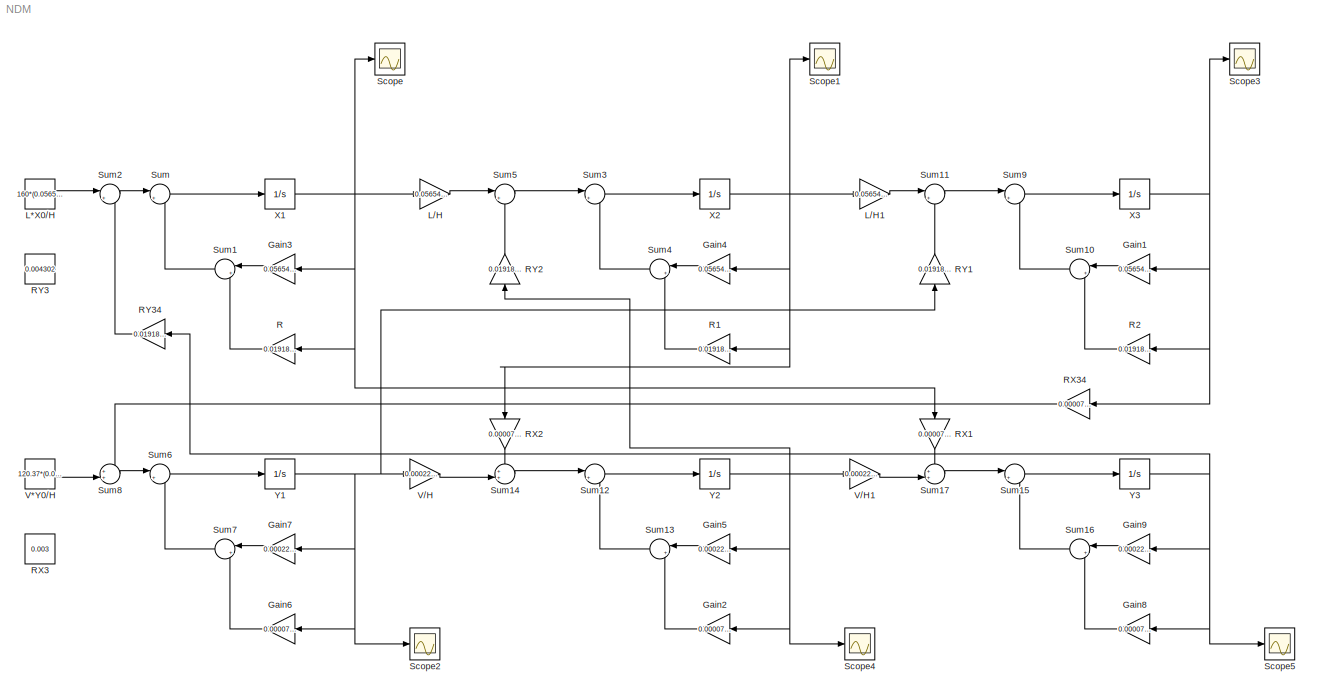
MODEL NDM
KIND model
BLOCK [Gain] Gain1
  Gain = 0.05654433/0.5
  OutDataTypeStr = Inherit: Inherit via internal rule
  ParamDataTypeStr = Inherit: Inherit via internal rule
  SID = 36
  SaturateOnIntegerOverflow = off
BLOCK [Gain] Gain2
  Gain = 0.0000777
  OutDataTypeStr = Inherit: Inherit via internal rule
  ParamDataTypeStr = Inherit: Inherit via internal rule
  SID = 47
  SaturateOnIntegerOverflow = off
BLOCK [Gain] Gain3
  Gain = 0.05654433/0.5
  OutDataTypeStr = Inherit: Inherit via internal rule
  ParamDataTypeStr = Inherit: Inherit via internal rule
  SID = 13
  SaturateOnIntegerOverflow = off
BLOCK [Gain] Gain4
  Gain = 0.05654433/0.5
  OutDataTypeStr = Inherit: Inherit via internal rule
  ParamDataTypeStr = Inherit: Inherit via internal rule
  SID = 20
  SaturateOnIntegerOverflow = off
BLOCK [Gain] Gain5
  Gain = 0.0002291314/0.5
  OutDataTypeStr = Inherit: Inherit via internal rule
  ParamDataTypeStr = Inherit: Inherit via internal rule
  SID = 48
  SaturateOnIntegerOverflow = off
BLOCK [Gain] Gain6
  Gain = 0.0000777
  OutDataTypeStr = Inherit: Inherit via internal rule
  ParamDataTypeStr = Inherit: Inherit via internal rule
  SID = 29
  SaturateOnIntegerOverflow = off
BLOCK [Gain] Gain7
  Gain = 0.0002291314/0.5
  OutDataTypeStr = Inherit: Inherit via internal rule
  ParamDataTypeStr = Inherit: Inherit via internal rule
  SID = 30
  SaturateOnIntegerOverflow = off
BLOCK [Gain] Gain8
  Gain = 0.0000777
  OutDataTypeStr = Inherit: Inherit via internal rule
  ParamDataTypeStr = Inherit: Inherit via internal rule
  SID = 56
  SaturateOnIntegerOverflow = off
BLOCK [Gain] Gain9
  Gain = 0.0002291314/0.5
  OutDataTypeStr = Inherit: Inherit via internal rule
  ParamDataTypeStr = Inherit: Inherit via internal rule
  SID = 57
  SaturateOnIntegerOverflow = off
BLOCK [Constant] L*X0//H
  SID = 5
  Value = 160*(0.05654433/0.5)
BLOCK [Gain] L//H
  Gain = 0.05654433/0.5
  OutDataTypeStr = Inherit: Inherit via internal rule
  ParamDataTypeStr = Inherit: Inherit via internal rule
  SID = 26
  SaturateOnIntegerOverflow = off
BLOCK [Gain] L//H1
  Gain = 0.05654433/0.5
  OutDataTypeStr = Inherit: Inherit via internal rule
  ParamDataTypeStr = Inherit: Inherit via internal rule
  SID = 42
  SaturateOnIntegerOverflow = off
BLOCK [Gain] R
  Gain = 0.0191806
  OutDataTypeStr = Inherit: Inherit via internal rule
  ParamDataTypeStr = Inherit: Inherit via internal rule
  SID = 12
  SaturateOnIntegerOverflow = off
BLOCK [Gain] R1
  Gain = 0.0191806
  OutDataTypeStr = Inherit: Inherit via internal rule
  ParamDataTypeStr = Inherit: Inherit via internal rule
  SID = 19
  SaturateOnIntegerOverflow = off
BLOCK [Gain] R2
  Gain = 0.0191806
  OutDataTypeStr = Inherit: Inherit via internal rule
  ParamDataTypeStr = Inherit: Inherit via internal rule
  SID = 37
  SaturateOnIntegerOverflow = off
BLOCK [Gain] RX1
  Gain = 0.0000777
  OutDataTypeStr = Inherit: Inherit via internal rule
  ParamDataTypeStr = Inherit: Inherit via internal rule
  SID = 68
  SaturateOnIntegerOverflow = off
BLOCK [Gain] RX2
  Gain = 0.0000777
  OutDataTypeStr = Inherit: Inherit via internal rule
  ParamDataTypeStr = Inherit: Inherit via internal rule
  SID = 67
  SaturateOnIntegerOverflow = off
BLOCK [Constant] RX3
  SID = 28
  Value = 0.003
BLOCK [Gain] RX34
  Gain = 0.0000777
  OutDataTypeStr = Inherit: Inherit via internal rule
  ParamDataTypeStr = Inherit: Inherit via internal rule
  SID = 70
  SaturateOnIntegerOverflow = off
BLOCK [Gain] RY1
  Gain = 0.0191806
  OutDataTypeStr = Inherit: Inherit via internal rule
  ParamDataTypeStr = Inherit: Inherit via internal rule
  SID = 66
  SaturateOnIntegerOverflow = off
BLOCK [Gain] RY2
  Gain = 0.0191806
  OutDataTypeStr = Inherit: Inherit via internal rule
  ParamDataTypeStr = Inherit: Inherit via internal rule
  SID = 65
  SaturateOnIntegerOverflow = off
BLOCK [Constant] RY3
  SID = 7
  Value = 0.004302
BLOCK [Gain] RY34
  Gain = 0.0191806
  OutDataTypeStr = Inherit: Inherit via internal rule
  ParamDataTypeStr = Inherit: Inherit via internal rule
  SID = 69
  SaturateOnIntegerOverflow = off
BLOCK [Scope] Scope
  DataFormat = StructureWithTime
  Floating = off
  LimitDataPoints = off
  NumInputPorts = 1
  Ports = [1]
  SID = 16
  SampleTime = 0
  YMax = 168
  YMin = 152
  ZoomMode = xonly
BLOCK [Scope] Scope1
  DataFormat = StructureWithTime
  Floating = off
  LimitDataPoints = off
  NumInputPorts = 1
  Ports = [1]
  SID = 22
  SampleTime = 0
  SaveName = ScopeData1
  YMax = 168
  YMin = 152
  ZoomMode = xonly
BLOCK [Scope] Scope2
  DataFormat = StructureWithTime
  Floating = off
  LimitDataPoints = off
  NumInputPorts = 1
  Ports = [1]
  SID = 35
  SampleTime = 0
  SaveName = ScopeData2
  YMax = -0.0003
  YMin = -0.00145
  ZoomMode = xonly
BLOCK [Scope] Scope3
  DataFormat = StructureWithTime
  Floating = off
  LimitDataPoints = off
  NumInputPorts = 1
  Ports = [1]
  SID = 38
  SampleTime = 0
  SaveName = ScopeData3
  ZoomMode = xonly
BLOCK [Scope] Scope4
  DataFormat = StructureWithTime
  Floating = off
  LimitDataPoints = off
  NumInputPorts = 1
  Ports = [1]
  SID = 49
  SampleTime = 0
  SaveName = ScopeData4
  YMax = -0.0181
  YMin = -0.0196
  ZoomMode = xonly
BLOCK [Scope] Scope5
  DataFormat = StructureWithTime
  Floating = off
  LimitDataPoints = off
  NumInputPorts = 1
  Ports = [1]
  SID = 58
  SampleTime = 0
  SaveName = ScopeData5
BLOCK [Sum] Sum
  IconShape = round
  InputSameDT = off
  Inputs = |+-
  OutDataTypeStr = Inherit: Inherit via internal rule
  Ports = [2, 1]
  SID = 4
  SaturateOnIntegerOverflow = off
BLOCK [Sum] Sum1
  IconShape = round
  InputSameDT = off
  Inputs = |++
  OutDataTypeStr = Inherit: Inherit via internal rule
  Ports = [2, 1]
  SID = 8
  SaturateOnIntegerOverflow = off
BLOCK [Sum] Sum10
  IconShape = round
  InputSameDT = off
  Inputs = |++
  OutDataTypeStr = Inherit: Inherit via internal rule
  Ports = [2, 1]
  SID = 40
  SaturateOnIntegerOverflow = off
BLOCK [Sum] Sum11
  IconShape = round
  InputSameDT = off
  Inputs = |++
  OutDataTypeStr = Inherit: Inherit via internal rule
  Ports = [2, 1]
  SID = 44
  SaturateOnIntegerOverflow = off
BLOCK [Sum] Sum12
  IconShape = round
  InputSameDT = off
  Inputs = |+-
  OutDataTypeStr = Inherit: Inherit via internal rule
  Ports = [2, 1]
  SID = 50
  SaturateOnIntegerOverflow = off
BLOCK [Sum] Sum13
  IconShape = round
  InputSameDT = off
  Inputs = |++
  OutDataTypeStr = Inherit: Inherit via internal rule
  Ports = [2, 1]
  SID = 51
  SaturateOnIntegerOverflow = off
BLOCK [Sum] Sum14
  IconShape = round
  InputSameDT = off
  Inputs = ++|
  OutDataTypeStr = Inherit: Inherit via internal rule
  Ports = [2, 1]
  SID = 52
  SaturateOnIntegerOverflow = off
BLOCK [Sum] Sum15
  IconShape = round
  InputSameDT = off
  Inputs = |+-
  OutDataTypeStr = Inherit: Inherit via internal rule
  Ports = [2, 1]
  SID = 59
  SaturateOnIntegerOverflow = off
BLOCK [Sum] Sum16
  IconShape = round
  InputSameDT = off
  Inputs = |++
  OutDataTypeStr = Inherit: Inherit via internal rule
  Ports = [2, 1]
  SID = 60
  SaturateOnIntegerOverflow = off
BLOCK [Sum] Sum17
  IconShape = round
  InputSameDT = off
  Inputs = ++|
  OutDataTypeStr = Inherit: Inherit via internal rule
  Ports = [2, 1]
  SID = 61
  SaturateOnIntegerOverflow = off
BLOCK [Sum] Sum2
  IconShape = round
  InputSameDT = off
  Inputs = |++
  OutDataTypeStr = Inherit: Inherit via internal rule
  Ports = [2, 1]
  SID = 15
  SaturateOnIntegerOverflow = off
BLOCK [Sum] Sum3
  IconShape = round
  InputSameDT = off
  Inputs = |+-
  OutDataTypeStr = Inherit: Inherit via internal rule
  Ports = [2, 1]
  SID = 23
  SaturateOnIntegerOverflow = off
BLOCK [Sum] Sum4
  IconShape = round
  InputSameDT = off
  Inputs = |++
  OutDataTypeStr = Inherit: Inherit via internal rule
  Ports = [2, 1]
  SID = 24
  SaturateOnIntegerOverflow = off
BLOCK [Sum] Sum5
  IconShape = round
  InputSameDT = off
  Inputs = |++
  OutDataTypeStr = Inherit: Inherit via internal rule
  Ports = [2, 1]
  SID = 25
  SaturateOnIntegerOverflow = off
BLOCK [Sum] Sum6
  IconShape = round
  InputSameDT = off
  Inputs = |+-
  OutDataTypeStr = Inherit: Inherit via internal rule
  Ports = [2, 1]
  SID = 32
  SaturateOnIntegerOverflow = off
BLOCK [Sum] Sum7
  IconShape = round
  InputSameDT = off
  Inputs = |++
  OutDataTypeStr = Inherit: Inherit via internal rule
  Ports = [2, 1]
  SID = 33
  SaturateOnIntegerOverflow = off
BLOCK [Sum] Sum8
  IconShape = round
  InputSameDT = off
  Inputs = ++|
  OutDataTypeStr = Inherit: Inherit via internal rule
  Ports = [2, 1]
  SID = 34
  SaturateOnIntegerOverflow = off
BLOCK [Sum] Sum9
  IconShape = round
  InputSameDT = off
  Inputs = |+-
  OutDataTypeStr = Inherit: Inherit via internal rule
  Ports = [2, 1]
  SID = 39
  SaturateOnIntegerOverflow = off
BLOCK [Constant] V*Y0//H
  SID = 27
  Value = 120.37*(0.0002291314/0.5)
BLOCK [Gain] V//H
  Gain = 0.0002291314/0.5
  OutDataTypeStr = Inherit: Inherit via internal rule
  ParamDataTypeStr = Inherit: Inherit via internal rule
  SID = 63
  SaturateOnIntegerOverflow = off
BLOCK [Gain] V//H1
  Gain = 0.0002291314/0.5
  OutDataTypeStr = Inherit: Inherit via internal rule
  ParamDataTypeStr = Inherit: Inherit via internal rule
  SID = 64
  SaturateOnIntegerOverflow = off
BLOCK [Integrator] X1
  Ports = [1, 1]
  SID = 6
BLOCK [Integrator] X2
  Ports = [1, 1]
  SID = 21
BLOCK [Integrator] X3
  Ports = [1, 1]
  SID = 41
BLOCK [Integrator] Y1
  Ports = [1, 1]
  SID = 31
BLOCK [Integrator] Y2
  Ports = [1, 1]
  SID = 53
BLOCK [Integrator] Y3
  Ports = [1, 1]
  SID = 62
LINE Gain1:1 -> Sum10:1
LINE Gain2:1 -> Sum13:2
LINE Gain3:1 -> Sum1:1
LINE Gain4:1 -> Sum4:1
LINE Gain5:1 -> Sum13:1
LINE Gain6:1 -> Sum7:2
LINE Gain7:1 -> Sum7:1
LINE Gain8:1 -> Sum16:2
LINE Gain9:1 -> Sum16:1
LINE L*X0//H:1 -> Sum2:1
LINE L//H1:1 -> Sum11:1
LINE L//H:1 -> Sum5:1
LINE R1:1 -> Sum4:2
LINE R2:1 -> Sum10:2
LINE R:1 -> Sum1:2
LINE RX1:1 -> Sum17:1
LINE RX2:1 -> Sum14:1
LINE RX34:1 -> Sum8:1
LINE RY1:1 -> Sum11:2
LINE RY2:1 -> Sum5:2
LINE RY34:1 -> Sum2:2
LINE Sum10:1 -> Sum9:2
LINE Sum11:1 -> Sum9:1
LINE Sum12:1 -> Y2:1
LINE Sum13:1 -> Sum12:2
LINE Sum14:1 -> Sum12:1
LINE Sum15:1 -> Y3:1
LINE Sum16:1 -> Sum15:2
LINE Sum17:1 -> Sum15:1
LINE Sum1:1 -> Sum:2
LINE Sum2:1 -> Sum:1
LINE Sum3:1 -> X2:1
LINE Sum4:1 -> Sum3:2
LINE Sum5:1 -> Sum3:1
LINE Sum6:1 -> Y1:1
LINE Sum7:1 -> Sum6:2
LINE Sum8:1 -> Sum6:1
LINE Sum9:1 -> X3:1
LINE Sum:1 -> X1:1
LINE V*Y0//H:1 -> Sum8:2
LINE V//H1:1 -> Sum17:2
LINE V//H:1 -> Sum14:2
NET X1:1 -> Gain3:1, L//H:1, R:1, RX1:1, Scope:1
NET X2:1 -> Gain4:1, L//H1:1, R1:1, RX2:1, Scope1:1
NET X3:1 -> Gain1:1, R2:1, RX34:1, Scope3:1
NET Y1:1 -> Gain6:1, Gain7:1, RY1:1, Scope2:1, V//H:1
NET Y2:1 -> Gain2:1, Gain5:1, RY2:1, Scope4:1, V//H1:1
NET Y3:1 -> Gain8:1, Gain9:1, RY34:1, Scope5:1
note: NET lines group one-source signal fan-out (src -> all destinations, sorted); 1:1 wires keep LINE
